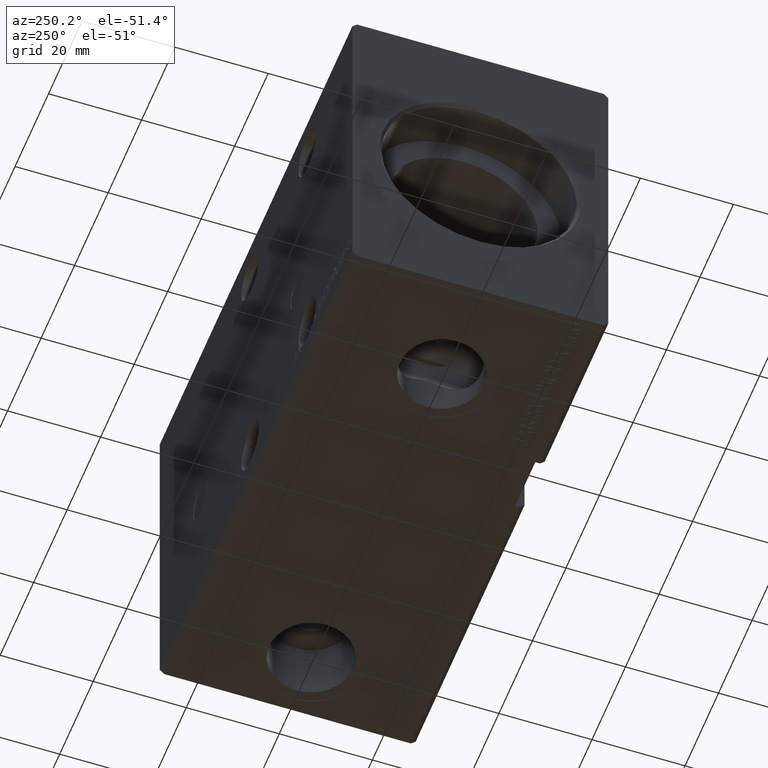
[diagram: clean part render]
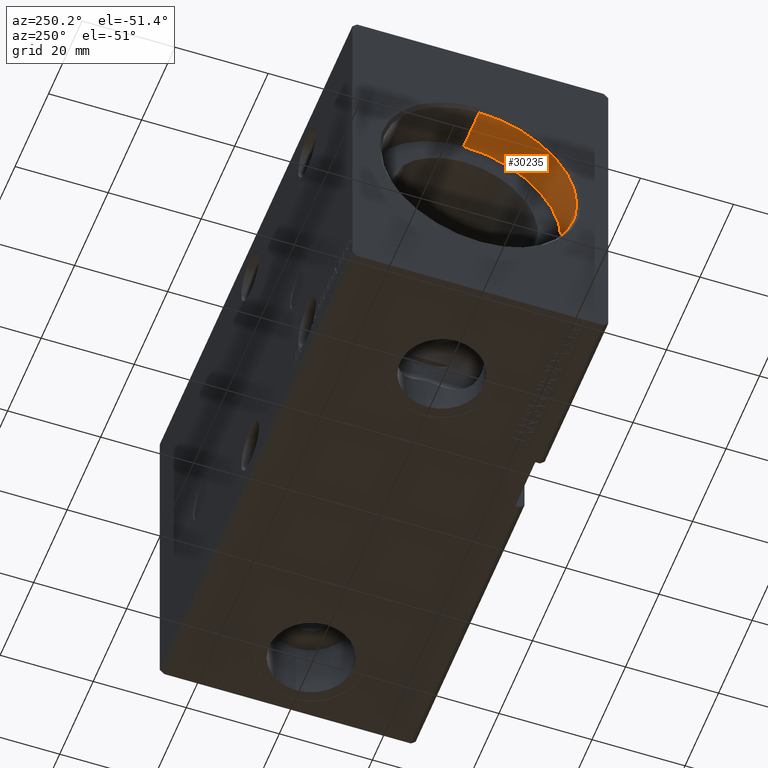
[diagram: same view with one face highlighted and labeled with its STEP entity id]
A machine part, auxiliary view. The second image highlights one B-rep face of the part: STEP entity #30235.
In plain terms, the highlighted cylindrical surface (partial cylindrical patch) has radius 21 mm, axis along (-1, -0, -0).
Its self-contained STEP definition (entity closure, byte-faithful):
#655 = EDGE_LOOP ( 'NONE', ( #6248, #36638, #26081, #38161 ) ) ;
#870 = CARTESIAN_POINT ( 'NONE',  ( 10.00000000000000000, 0.000000000000000000, 0.000000000000000000 ) ) ;
#973 = VERTEX_POINT ( 'NONE', #18283 ) ;
#4849 = VECTOR ( 'NONE', #35948, 1000.000000000000000 ) ;
#5536 = CIRCLE ( 'NONE', #6843, 21.00000000000000000 ) ;
#6248 = ORIENTED_EDGE ( 'NONE', *, *, #6849, .F. ) ;
#6843 = AXIS2_PLACEMENT_3D ( 'NONE', #29771, #32749, #28990 ) ;
#6849 = EDGE_CURVE ( 'NONE', #30662, #973, #14228, .T. ) ;
#8283 = CARTESIAN_POINT ( 'NONE',  ( 10.00000000000000000, 0.000000000000000000, 21.00000000000000000 ) ) ;
#8853 = VERTEX_POINT ( 'NONE', #25183 ) ;
#11120 = VERTEX_POINT ( 'NONE', #11923 ) ;
#11782 = EDGE_CURVE ( 'NONE', #30662, #11120, #37696, .T. ) ;
#11923 = CARTESIAN_POINT ( 'NONE',  ( 0.7000000000000443645, 2.571758278209441661E-15, -21.00000000000000000 ) ) ;
#13415 = CARTESIAN_POINT ( 'NONE',  ( 10.00000000000000000, 2.571758278209441661E-15, -21.00000000000000000 ) ) ;
#14228 = CIRCLE ( 'NONE', #16801, 21.00000000000000000 ) ;
#16405 = AXIS2_PLACEMENT_3D ( 'NONE', #22437, #28600, #23012 ) ;
#16801 = AXIS2_PLACEMENT_3D ( 'NONE', #870, #30385, #27599 ) ;
#18283 = CARTESIAN_POINT ( 'NONE',  ( 10.00000000000000000, 0.000000000000000000, 21.00000000000000000 ) ) ;
#20002 = FACE_OUTER_BOUND ( 'NONE', #655, .T. ) ;
#21754 = CARTESIAN_POINT ( 'NONE',  ( 10.00000000000000000, 2.571758278209441661E-15, -21.00000000000000000 ) ) ;
#22404 = EDGE_CURVE ( 'NONE', #11120, #8853, #5536, .T. ) ;
#22437 = CARTESIAN_POINT ( 'NONE',  ( 10.00000000000000000, 0.000000000000000000, 0.000000000000000000 ) ) ;
#23012 = DIRECTION ( 'NONE',  ( 0.000000000000000000, 0.000000000000000000, 1.000000000000000000 ) ) ;
#25183 = CARTESIAN_POINT ( 'NONE',  ( 0.7000000000000443645, 0.000000000000000000, 21.00000000000000000 ) ) ;
#25192 = VECTOR ( 'NONE', #37513, 1000.000000000000000 ) ;
#26081 = ORIENTED_EDGE ( 'NONE', *, *, #22404, .T. ) ;
#27599 = DIRECTION ( 'NONE',  ( 0.000000000000000000, 0.000000000000000000, 1.000000000000000000 ) ) ;
#28402 = CYLINDRICAL_SURFACE ( 'NONE', #16405, 21.00000000000000000 ) ;
#28600 = DIRECTION ( 'NONE',  ( -1.000000000000000000, -0.000000000000000000, -0.000000000000000000 ) ) ;
#28990 = DIRECTION ( 'NONE',  ( 0.000000000000000000, 0.000000000000000000, -1.000000000000000000 ) ) ;
#29771 = CARTESIAN_POINT ( 'NONE',  ( 0.7000000000000443645, 0.000000000000000000, 0.000000000000000000 ) ) ;
#30235 = ADVANCED_FACE ( 'NONE', ( #20002 ), #28402, .F. ) ;
#30385 = DIRECTION ( 'NONE',  ( -1.000000000000000000, 0.000000000000000000, 0.000000000000000000 ) ) ;
#30662 = VERTEX_POINT ( 'NONE', #21754 ) ;
#32749 = DIRECTION ( 'NONE',  ( -1.000000000000000000, 0.000000000000000000, 0.000000000000000000 ) ) ;
#35558 = LINE ( 'NONE', #8283, #4849 ) ;
#35790 = EDGE_CURVE ( 'NONE', #973, #8853, #35558, .T. ) ;
#35948 = DIRECTION ( 'NONE',  ( -1.000000000000000000, -0.000000000000000000, -0.000000000000000000 ) ) ;
#36638 = ORIENTED_EDGE ( 'NONE', *, *, #11782, .T. ) ;
#37513 = DIRECTION ( 'NONE',  ( -1.000000000000000000, -0.000000000000000000, -0.000000000000000000 ) ) ;
#37696 = LINE ( 'NONE', #13415, #25192 ) ;
#38161 = ORIENTED_EDGE ( 'NONE', *, *, #35790, .F. ) ;